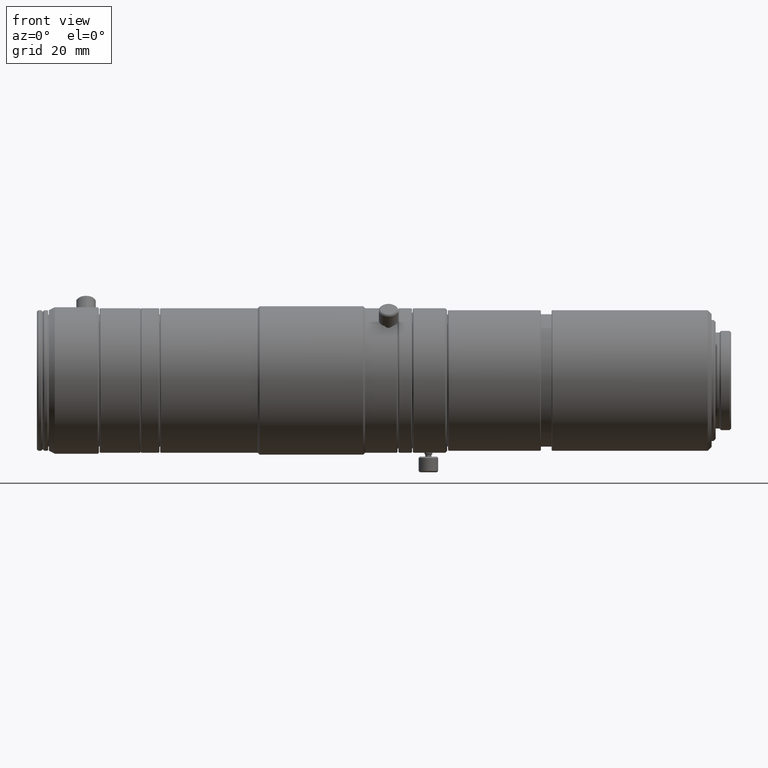
[diagram: clean part render]
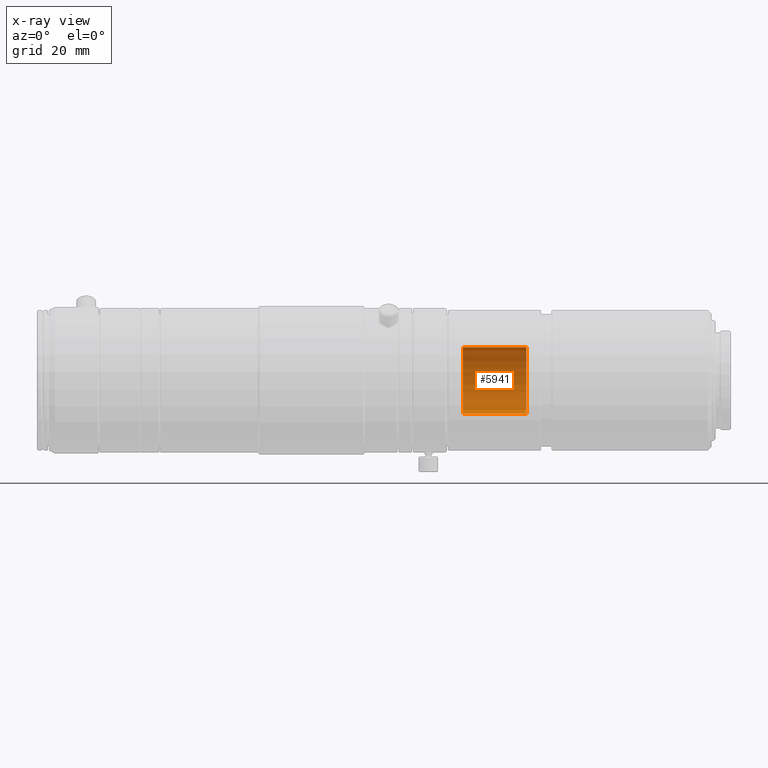
[diagram: x-ray — body ghosted, one internal face saturated and labeled with its STEP entity id]
A machine part, front view, then the same camera in x-ray: the body is ghosted and one INTERNAL B-rep face — a face not visible from any outside direction — is saturated and labeled: STEP entity #5941.
In plain terms, the highlighted cylindrical surface (edge-blend (fillet) strip) has radius 8.5 mm, axis along (1, -0, -0).
Its self-contained STEP definition (entity closure, byte-faithful):
#530 = VERTEX_POINT ( 'NONE', #4881 ) ;
#531 = VERTEX_POINT ( 'NONE', #4880 ) ;
#533 = VERTEX_POINT ( 'NONE', #4877 ) ;
#546 = VERTEX_POINT ( 'NONE', #4863 ) ;
#717 = CIRCLE ( 'NONE', #5862, 8.499999999999971600 ) ;
#719 = LINE ( 'NONE', #4477, #721 ) ;
#721 = VECTOR ( 'NONE', #4480, 1000.000000000000000 ) ;
#724 = CIRCLE ( 'NONE', #5867, 8.499999999999971600 ) ;
#727 = LINE ( 'NONE', #4481, #729 ) ;
#729 = VECTOR ( 'NONE', #4406, 1000.000000000000000 ) ;
#2315 = FACE_OUTER_BOUND ( 'NONE', #5553, .T. ) ;
#2318 = CYLINDRICAL_SURFACE ( 'NONE', #4296, 8.499999999999971600 ) ;
#2907 = DIRECTION ( 'NONE',  ( 0.0000000000000000000, 0.0000000000000000000, -1.000000000000000000 ) ) ;
#2909 = DIRECTION ( 'NONE',  ( 1.000000000000000000, -0.0000000000000000000, -0.0000000000000000000 ) ) ;
#2911 = CARTESIAN_POINT ( 'NONE',  ( 0.0000000000000000000, 0.0000000000000000000, 0.0000000000000000000 ) ) ;
#4025 = EDGE_CURVE ( 'NONE', #546, #531, #719, .T. ) ;
#4026 = EDGE_CURVE ( 'NONE', #533, #546, #717, .T. ) ;
#4031 = EDGE_CURVE ( 'NONE', #530, #531, #724, .T. ) ;
#4032 = EDGE_CURVE ( 'NONE', #533, #530, #727, .T. ) ;
#4296 = AXIS2_PLACEMENT_3D ( 'NONE', #2911, #2909, #2907 ) ;
#4406 = DIRECTION ( 'NONE',  ( 1.000000000000000000, -0.0000000000000000000, -0.0000000000000000000 ) ) ;
#4425 = CARTESIAN_POINT ( 'NONE',  ( -82.27219436237683700, 0.0000000000000000000, 0.0000000000000000000 ) ) ;
#4442 = DIRECTION ( 'NONE',  ( 1.000000000000000000, -0.0000000000000000000, -0.0000000000000000000 ) ) ;
#4477 = CARTESIAN_POINT ( 'NONE',  ( 0.0000000000000000000, 1.040949779275246800E-015, 8.499999999999971600 ) ) ;
#4480 = DIRECTION ( 'NONE',  ( 1.000000000000000000, -0.0000000000000000000, -0.0000000000000000000 ) ) ;
#4481 = CARTESIAN_POINT ( 'NONE',  ( 0.0000000000000000000, 0.0000000000000000000, -8.499999999999971600 ) ) ;
#4485 = DIRECTION ( 'NONE',  ( 0.0000000000000000000, 0.0000000000000000000, -1.000000000000000000 ) ) ;
#4494 = CARTESIAN_POINT ( 'NONE',  ( -65.97219436237684000, 0.0000000000000000000, 0.0000000000000000000 ) ) ;
#4522 = DIRECTION ( 'NONE',  ( 1.000000000000000000, -0.0000000000000000000, -0.0000000000000000000 ) ) ;
#4529 = DIRECTION ( 'NONE',  ( 0.0000000000000000000, 0.0000000000000000000, -1.000000000000000000 ) ) ;
#4863 = CARTESIAN_POINT ( 'NONE',  ( -82.27219436237683700, 1.040949779275246800E-015, 8.499999999999971600 ) ) ;
#4877 = CARTESIAN_POINT ( 'NONE',  ( -82.27219436237683700, 0.0000000000000000000, -8.499999999999971600 ) ) ;
#4880 = CARTESIAN_POINT ( 'NONE',  ( -65.97219436237684000, 0.0000000000000000000, 8.499999999999971600 ) ) ;
#4881 = CARTESIAN_POINT ( 'NONE',  ( -65.97219436237684000, 1.040949779275246800E-015, -8.499999999999971600 ) ) ;
#5553 = EDGE_LOOP ( 'NONE', ( #5653, #5666, #5692, #5659 ) ) ;
#5653 = ORIENTED_EDGE ( 'NONE', *, *, #4026, .T. ) ;
#5659 = ORIENTED_EDGE ( 'NONE', *, *, #4032, .F. ) ;
#5666 = ORIENTED_EDGE ( 'NONE', *, *, #4025, .T. ) ;
#5692 = ORIENTED_EDGE ( 'NONE', *, *, #4031, .F. ) ;
#5862 = AXIS2_PLACEMENT_3D ( 'NONE', #4425, #4442, #4485 ) ;
#5867 = AXIS2_PLACEMENT_3D ( 'NONE', #4494, #4522, #4529 ) ;
#5941 = ADVANCED_FACE ( 'NONE', ( #2315 ), #2318, .T. ) ;